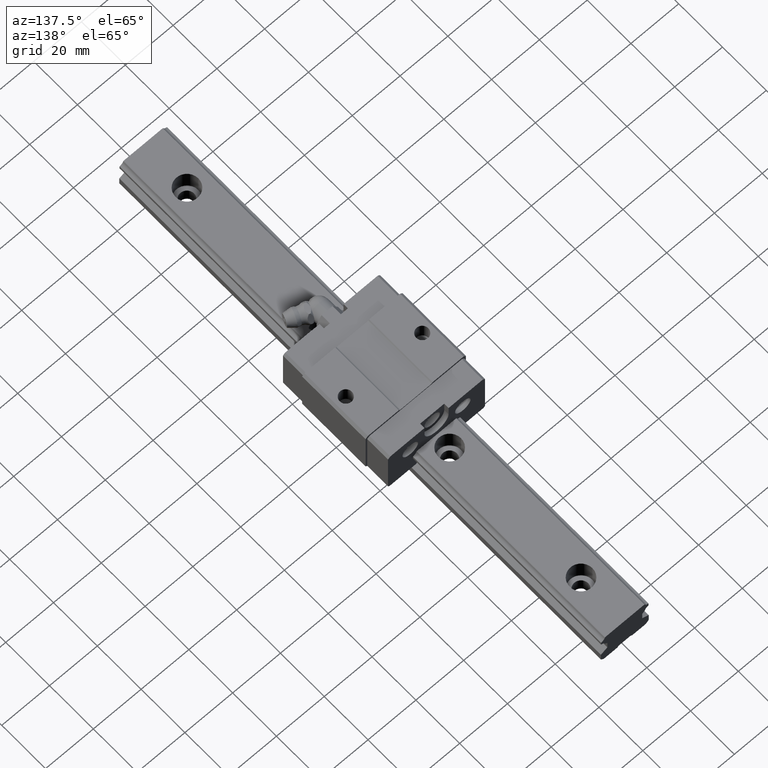
[diagram: clean part render]
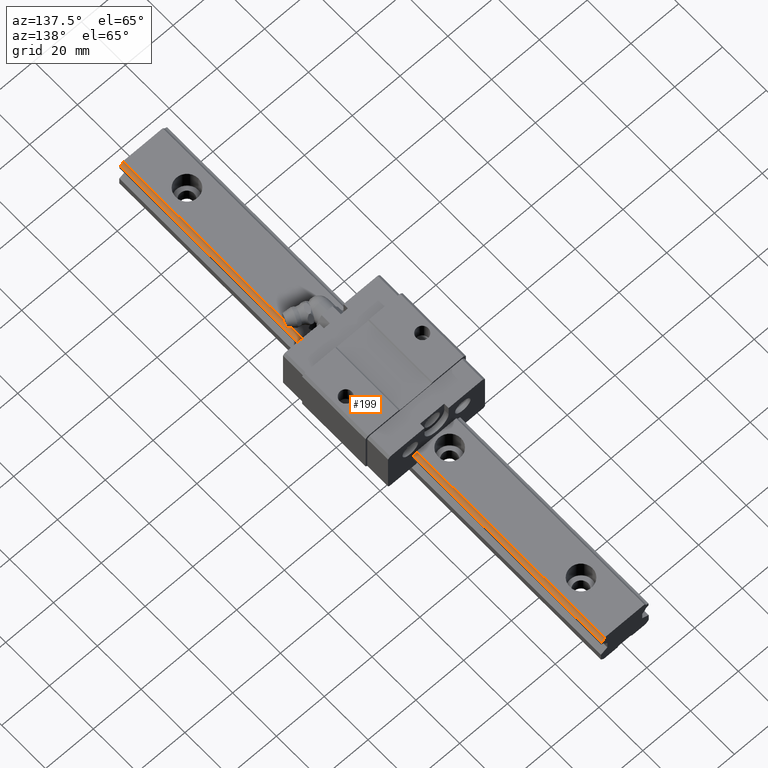
[diagram: same view with one face highlighted and labeled with its STEP entity id]
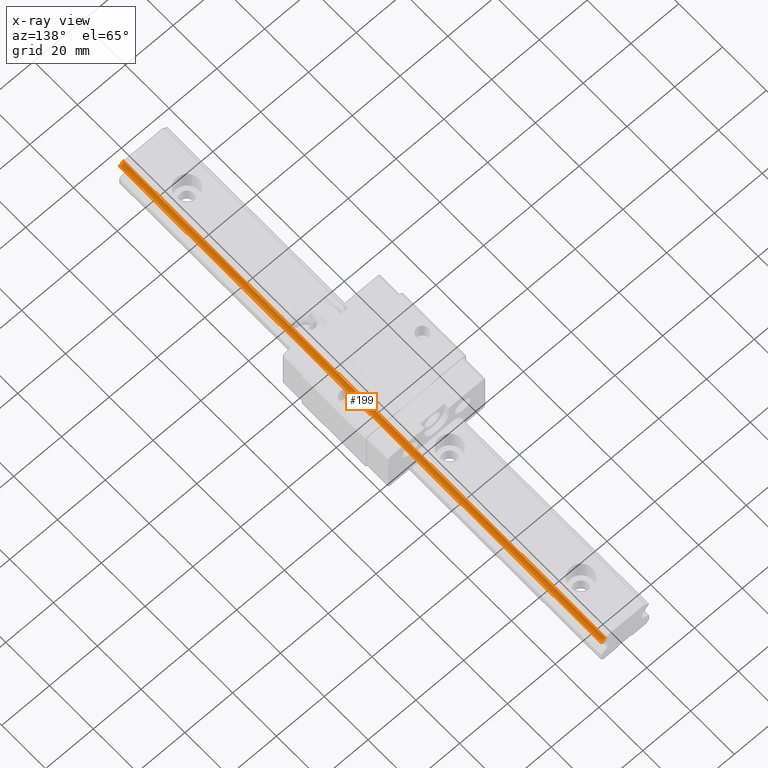
[diagram: x-ray of the same camera — body ghosted, the highlighted face saturated]
A machine part, auxiliary view. The second image highlights one B-rep face of the part: STEP entity #199.
The next image is the same camera in x-ray: the body ghosted, the highlighted face saturated — about 0% of this face is hidden behind the body in this view.
In plain terms, the highlighted cylindrical surface (edge-blend (fillet) strip) has radius 1.8 mm, axis along (0, -1, 0).
Its self-contained STEP definition (entity closure, byte-faithful):
#199=ADVANCED_FACE('',(#413),#414,.F.);
#413=FACE_OUTER_BOUND('',#799,.T.);
#414=CYLINDRICAL_SURFACE('',#800,1.8);
#799=EDGE_LOOP('',(#1444,#1445,#1446,#1447));
#800=AXIS2_PLACEMENT_3D('',#1448,#1449,#1450);
#1444=ORIENTED_EDGE('',*,*,#2788,.T.);
#1445=ORIENTED_EDGE('',*,*,#2838,.F.);
#1446=ORIENTED_EDGE('',*,*,#2839,.F.);
#1447=ORIENTED_EDGE('',*,*,#2840,.T.);
#1448=CARTESIAN_POINT('',(10.1449012806,110.0,14.5449102806));
#1449=DIRECTION('',(0.0,-1.0,0.0));
#1450=DIRECTION('',(0.0,0.0,-1.0));
#2788=EDGE_CURVE('',#3341,#3339,#3342,.T.);
#2838=EDGE_CURVE('',#3417,#3339,#3418,.T.);
#2839=EDGE_CURVE('',#3419,#3417,#3420,.T.);
#2840=EDGE_CURVE('',#3419,#3341,#3421,.T.);
#3339=VERTEX_POINT('',#4181);
#3341=VERTEX_POINT('',#4184);
#3342=CIRCLE('',#4185,1.8);
#3417=VERTEX_POINT('',#4292);
#3418=LINE('',#4293,#4294);
#3419=VERTEX_POINT('',#4295);
#3420=CIRCLE('',#4296,1.8);
#3421=LINE('',#4297,#4298);
#4181=CARTESIAN_POINT('',(9.83156570942089,-110.0,12.772392066354));
#4184=CARTESIAN_POINT('',(8.3723830664,-110.0,14.2315747094));
#4185=AXIS2_PLACEMENT_3D('',#5447,#5448,#5449);
#4292=CARTESIAN_POINT('',(9.83156570942089,110.0,12.772392066354));
#4293=CARTESIAN_POINT('',(9.83156570942089,110.0,12.772392066354));
#4294=VECTOR('',#5533,1000.0);
#4295=CARTESIAN_POINT('',(8.3723830664,110.0,14.2315747094));
#4296=AXIS2_PLACEMENT_3D('',#5534,#5535,#5536);
#4297=CARTESIAN_POINT('',(8.3723830664,110.0,14.2315747094));
#4298=VECTOR('',#5537,1000.0);
#5447=CARTESIAN_POINT('',(10.1449012806,-110.0,14.5449102806));
#5448=DIRECTION('',(0.0,-1.0,0.0));
#5449=DIRECTION('',(1.0,0.0,0.0));
#5533=DIRECTION('',(0.0,-1.0,0.0));
#5534=CARTESIAN_POINT('',(10.1449012806,110.0,14.5449102806));
#5535=DIRECTION('',(0.0,-1.0,0.0));
#5536=DIRECTION('',(1.0,0.0,0.0));
#5537=DIRECTION('',(0.0,-1.0,0.0));